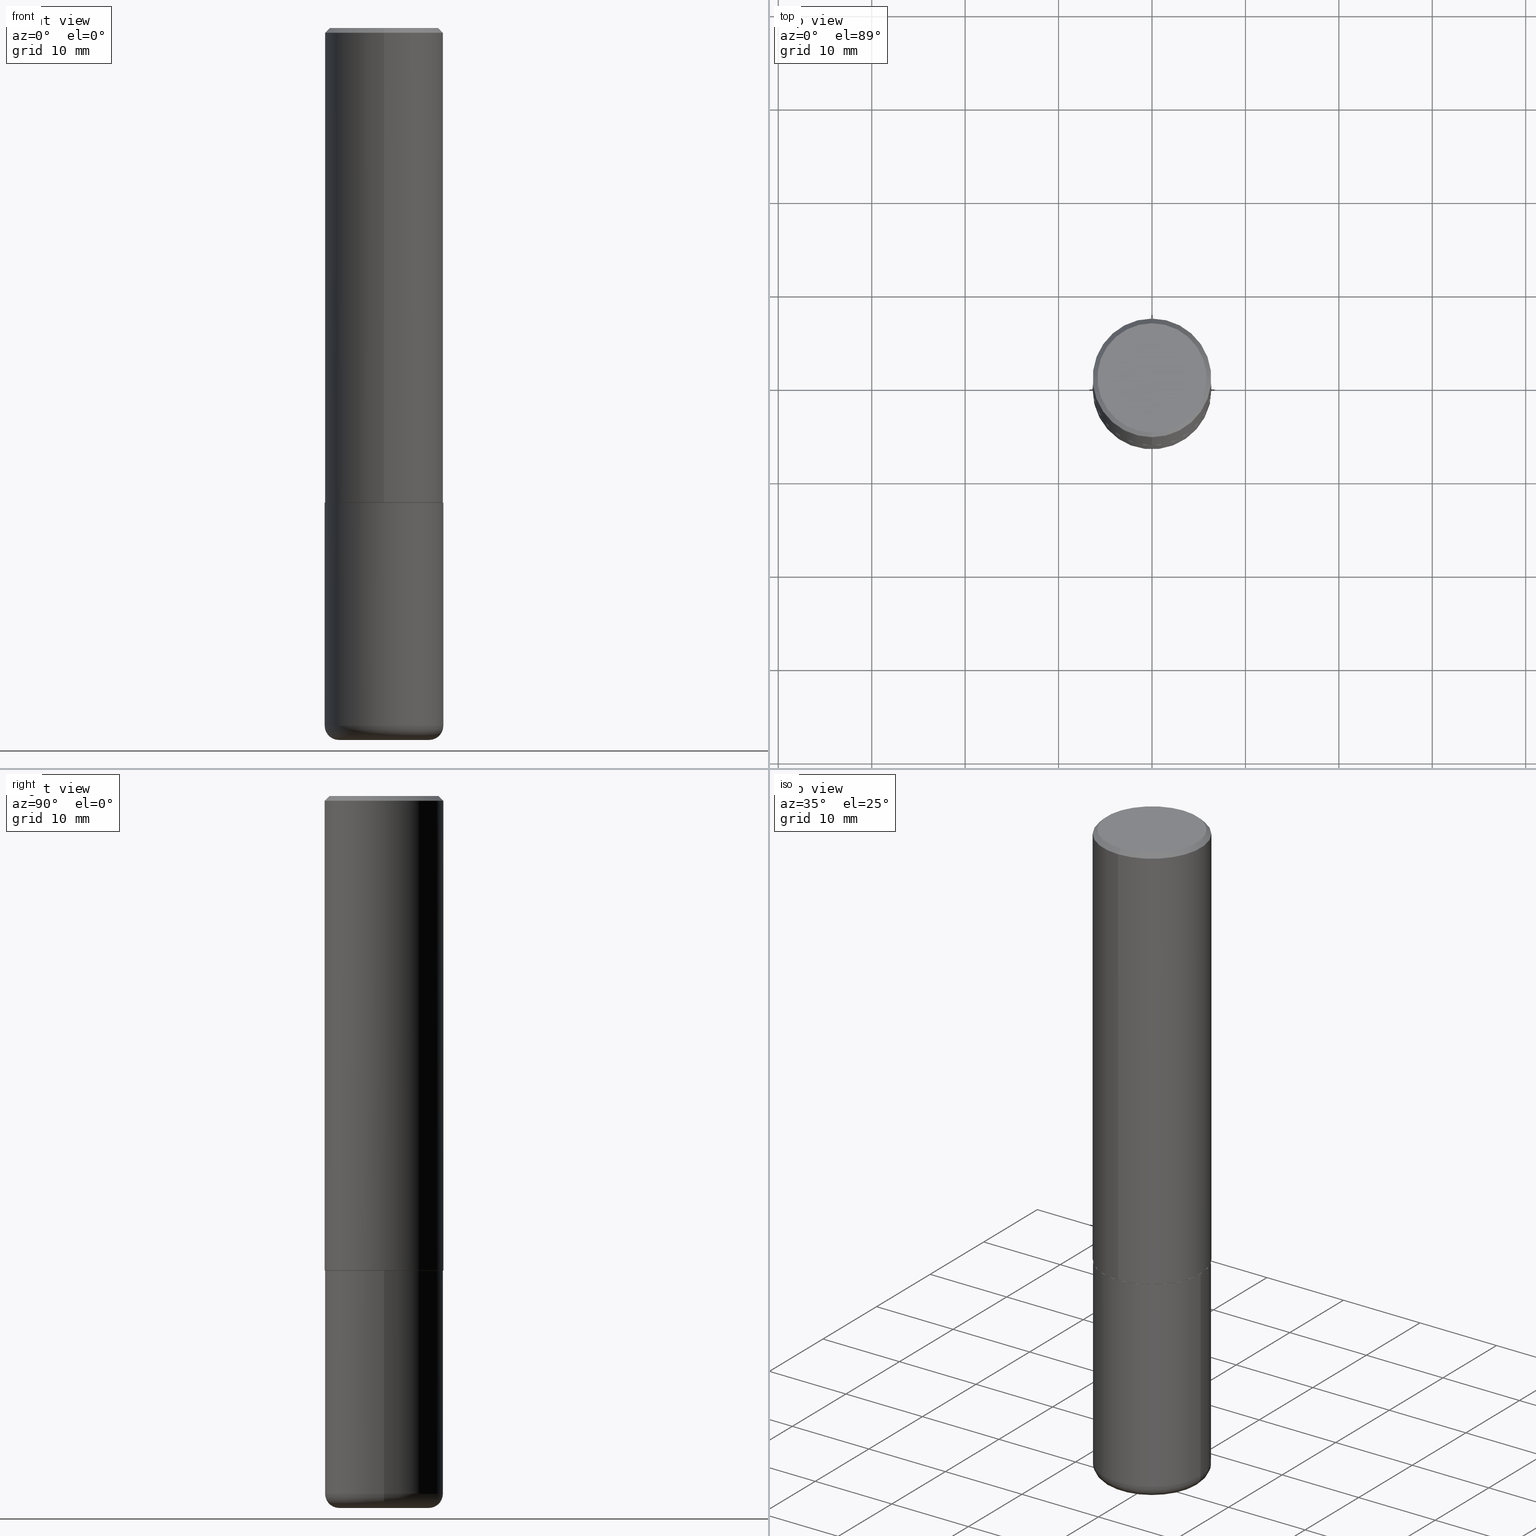
[diagram: canonical four-view strip — front | top / right | iso, engineering-drawing reading convention]
A machine part, canonical four-view strip (front | top / right | iso — engineering-drawing reading convention). The complete STEP part file that produces these views, byte-faithful:
ISO-10303-21;
HEADER;
FILE_DESCRIPTION (( 'STEP AP203' ),
    '1' );
FILE_NAME ('38378.STEP',
    '2024-03-03T01:48:02',
    ( '' ),
    ( '' ),
    'SwSTEP 2.0',
    'SolidWorks 2023',
    '' );
FILE_SCHEMA (( 'CONFIG_CONTROL_DESIGN' ));
ENDSEC;

DATA;
#1 = PLANE ( 'NONE',  #317 ) ;
#2 = ADVANCED_FACE ( 'NONE', ( #388 ), #319, .F. ) ;
#3 = CARTESIAN_POINT ( 'NONE',  ( -1.646519519465166573E-15, -0.2299999999999997879, 9.532569058576452351E-16 ) ) ;
#4 = AXIS2_PLACEMENT_3D ( 'NONE', #65, #379, #7 ) ;
#5 = EDGE_LOOP ( 'NONE', ( #51, #56, #334, #87 ) ) ;
#6 = EDGE_CURVE ( 'NONE', #146, #144, #252, .T. ) ;
#7 = DIRECTION ( 'NONE',  ( 6.982962677686265922E-15, 1.000000000000000000, -3.500180241882337261E-15 ) ) ;
#8 = CONICAL_SURFACE ( 'NONE', #396, 0.2500000000000000000, 0.7853981633974480570 ) ;
#9 = APPLICATION_PROTOCOL_DEFINITION ( 'international standard', 'config_control_design', 1994, #349 ) ;
#10 = ADVANCED_FACE ( 'NONE', ( #150 ), #123, .T. ) ;
#11 = CLOSED_SHELL ( 'NONE', ( #130, #258, #377, #385, #10, #362, #360, #2 ) ) ;
#12 = EDGE_CURVE ( 'NONE', #315, #361, #67, .T. ) ;
#13 = DIRECTION ( 'NONE',  ( -2.444226657398402323E-29, 3.493260166604467606E-15, 1.000000000000000000 ) ) ;
#14 = MANIFOLD_SOLID_BREP ( 'Body-Move/Copy2[2]', #11 ) ;
#15 = ORIENTED_EDGE ( 'NONE', *, *, #340, .F. ) ;
#16 = DIRECTION ( 'NONE',  ( -2.444226657398402323E-29, 3.493260166604467606E-15, 1.000000000000000000 ) ) ;
#17 = EDGE_LOOP ( 'NONE', ( #332, #81, #48, #117 ) ) ;
#18 = AXIS2_PLACEMENT_3D ( 'NONE', #152, #219, #64 ) ;
#19 = CARTESIAN_POINT ( 'NONE',  ( -0.1899999999999999745, -8.806505557691924342E-15, -2.999999999999999556 ) ) ;
#20 = PERSON_AND_ORGANIZATION ( #119, #45 ) ;
#21 = ORIENTED_EDGE ( 'NONE', *, *, #292, .T. ) ;
#22 = DIRECTION ( 'NONE',  ( -2.444226657398402323E-29, 3.493260166604467606E-15, 1.000000000000000000 ) ) ;
#23 = PERSON_AND_ORGANIZATION_ROLE ( 'creator' ) ;
#24 = ORIENTED_EDGE ( 'NONE', *, *, #211, .T. ) ;
#25 = CYLINDRICAL_SURFACE ( 'NONE', #404, 0.2500000000000001110 ) ;
#26 = ORIENTED_EDGE ( 'NONE', *, *, #418, .T. ) ;
#27 = EDGE_CURVE ( 'NONE', #144, #204, #44, .T. ) ;
#28 = AXIS2_PLACEMENT_3D ( 'NONE', #310, #406, #43 ) ;
#29 = PRODUCT ( '38378', '38378', '', ( #392 ) ) ;
#30 = APPROVAL_STATUS ( 'not_yet_approved' ) ;
#31 = CARTESIAN_POINT ( 'NONE',  ( 0.2500000000000000000, -1.745740669421566678E-15, 1.219044193948983948E-29 ) ) ;
#32 = CARTESIAN_POINT ( 'NONE',  ( 1.776356839400276103E-15, 0.2499999999999933109, -1.999000000000000998 ) ) ;
#33 = CALENDAR_DATE ( 2024, 2, 3 ) ;
#34 = DIRECTION ( 'NONE',  ( -2.445468806185136597E-29, 3.491481338843145583E-15, 1.000000000000000000 ) ) ;
#35 = CYLINDRICAL_SURFACE ( 'NONE', #128, 0.2500000000000000000 ) ;
#36 = DIRECTION ( 'NONE',  ( 7.105427357601001859E-15, 1.000000000000000000, -3.491481338843145583E-15 ) ) ;
#37 = EDGE_CURVE ( 'NONE', #132, #204, #188, .T. ) ;
#38 = AXIS2_PLACEMENT_3D ( 'NONE', #239, #116, #78 ) ;
#39 = CONICAL_SURFACE ( 'NONE', #4, 0.2500000000000000000, 0.7853981633974480570 ) ;
#40 = CARTESIAN_POINT ( 'NONE',  ( 1.769251412042697971E-15, 0.2489999999999930047, -2.000000000000001332 ) ) ;
#41 = CC_DESIGN_DATE_AND_TIME_ASSIGNMENT ( #318, #243, ( #177 ) ) ;
#42 = PERSON_AND_ORGANIZATION_ROLE ( 'design_owner' ) ;
#43 = DIRECTION ( 'NONE',  ( 1.000000000000000000, -6.982962677686262766E-15, 0.000000000000000000 ) ) ;
#44 = CIRCLE ( 'NONE', #254, 0.2500000000000000000 ) ;
#45 = ORGANIZATION ( 'UNSPECIFIED', 'UNSPECIFIED', '' ) ;
#46 = CARTESIAN_POINT ( 'NONE',  ( 1.776356839400251254E-15, 0.2500000000000001110, -8.733150416511173944E-16 ) ) ;
#47 = ORIENTED_EDGE ( 'NONE', *, *, #269, .F. ) ;
#48 = ORIENTED_EDGE ( 'NONE', *, *, #86, .T. ) ;
#49 = DIRECTION ( 'NONE',  ( -6.982962677686265922E-15, -1.000000000000000000, 3.278217592397112312E-15 ) ) ;
#50 = PERSON_AND_ORGANIZATION ( #119, #45 ) ;
#51 = ORIENTED_EDGE ( 'NONE', *, *, #37, .F. ) ;
#52 = LINE ( 'NONE', #46, #296 ) ;
#53 = ORIENTED_EDGE ( 'NONE', *, *, #131, .T. ) ;
#54 = DIRECTION ( 'NONE',  ( -2.444226657398402323E-29, 3.493260166604467606E-15, 1.000000000000000000 ) ) ;
#55 = EDGE_CURVE ( 'NONE', #90, #114, #242, .T. ) ;
#56 = ORIENTED_EDGE ( 'NONE', *, *, #73, .T. ) ;
#57 = DIRECTION ( 'NONE',  ( -1.000000000000000000, 6.982962677686265922E-15, -4.876176775795935793E-29 ) ) ;
#58 = COORDINATED_UNIVERSAL_TIME_OFFSET ( 5, 0, .BEHIND. ) ;
#59 = ORIENTED_EDGE ( 'NONE', *, *, #211, .F. ) ;
#60 = FACE_OUTER_BOUND ( 'NONE', #407, .T. ) ;
#61 = TOROIDAL_SURFACE ( 'NONE', #339, 0.1899999999999999745, 0.05999999999999968553 ) ;
#62 = DIRECTION ( 'NONE',  ( 1.000000000000000000, -6.982962677686266711E-15, 0.000000000000000000 ) ) ;
#63 = CARTESIAN_POINT ( 'NONE',  ( -0.1899999999999999745, -8.914923938254659640E-15, -2.940000000000000391 ) ) ;
#64 = DIRECTION ( 'NONE',  ( 6.982962677686265922E-15, 1.000000000000000000, -3.493260166604467606E-15 ) ) ;
#65 = CARTESIAN_POINT ( 'NONE',  ( 4.888453314796818974E-31, -6.986520333208953651E-17, -0.02000000000000005593 ) ) ;
#66 = PERSON_AND_ORGANIZATION_ROLE ( 'design_supplier' ) ;
#67 = LINE ( 'NONE', #327, #168 ) ;
#68 = CIRCLE ( 'NONE', #325, 0.2500000000000000000 ) ;
#69 =( GEOMETRIC_REPRESENTATION_CONTEXT ( 3 ) GLOBAL_UNCERTAINTY_ASSIGNED_CONTEXT ( ( #229 ) ) GLOBAL_UNIT_ASSIGNED_CONTEXT ( ( #97, #195, #162 ) ) REPRESENTATION_CONTEXT ( 'NONE', 'WORKASPACE' ) );
#70 = DIRECTION ( 'NONE',  ( -1.000000000000000000, 7.105427357600997914E-15, 0.000000000000000000 ) ) ;
#71 = EDGE_CURVE ( 'NONE', #337, #236, #257, .T. ) ;
#72 = APPROVAL_PERSON_ORGANIZATION ( #20, #205, #143 ) ;
#73 = EDGE_CURVE ( 'NONE', #132, #146, #163, .T. ) ;
#74 = DIRECTION ( 'NONE',  ( 1.000000000000000000, -6.982962677686275388E-15, 0.000000000000000000 ) ) ;
#75 = DIRECTION ( 'NONE',  ( 1.000000000000000000, 0.000000000000000000, 0.000000000000000000 ) ) ;
#76 = CARTESIAN_POINT ( 'NONE',  ( 4.888453314796805767E-29, -6.986520333208936789E-15, -2.000000000000000444 ) ) ;
#77 = CIRCLE ( 'NONE', #348, 0.2500000000000002776 ) ;
#78 = DIRECTION ( 'NONE',  ( -1.000000000000000000, 6.982962677686265922E-15, -4.876176775795935793E-29 ) ) ;
#79 = EDGE_LOOP ( 'NONE', ( #414, #53, #395, #280 ) ) ;
#80 = CARTESIAN_POINT ( 'NONE',  ( -1.738757706743831360E-15, -0.2490000000000069935, -1.999999999999999778 ) ) ;
#81 = ORIENTED_EDGE ( 'NONE', *, *, #269, .T. ) ;
#82 = FACE_OUTER_BOUND ( 'NONE', #17, .T. ) ;
#83 = CALENDAR_DATE ( 2024, 2, 3 ) ;
#84 = ORIENTED_EDGE ( 'NONE', *, *, #198, .F. ) ;
#85 = DIRECTION ( 'NONE',  ( 4.937700262164546464E-15, 0.7071067811865449082, -0.7071067811865501263 ) ) ;
#86 = EDGE_CURVE ( 'NONE', #90, #146, #403, .T. ) ;
#87 = ORIENTED_EDGE ( 'NONE', *, *, #103, .F. ) ;
#88 = CARTESIAN_POINT ( 'NONE',  ( 4.890937612370273754E-29, -6.982962677686291954E-15, -2.000000000000000444 ) ) ;
#89 = DIMENSIONAL_EXPONENTS ( 1.000000000000000000, 0.000000000000000000, 0.000000000000000000, 0.000000000000000000, 0.000000000000000000, 0.000000000000000000, 0.000000000000000000 ) ;
#90 = VERTEX_POINT ( 'NONE', #166 ) ;
#91 = CARTESIAN_POINT ( 'NONE',  ( -1.745740669421567467E-15, -0.2500000000000001110, 8.733150416511173944E-16 ) ) ;
#92 = DIRECTION ( 'NONE',  ( -4.851104656540962697E-15, -0.7071067811865497932, -0.7071067811865452413 ) ) ;
#93 = CONICAL_SURFACE ( 'NONE', #215, 0.2489999999999999991, 0.7853981633974141952 ) ;
#94 = CYLINDRICAL_SURFACE ( 'NONE', #295, 0.2500000000000000000 ) ;
#95 = LINE ( 'NONE', #91, #279 ) ;
#96 = VERTEX_POINT ( 'NONE', #173 ) ;
#97 =( CONVERSION_BASED_UNIT ( 'INCH', #222 ) LENGTH_UNIT ( ) NAMED_UNIT ( #89 ) );
#98 = ADVANCED_FACE ( 'NONE', ( #110 ), #263, .T. ) ;
#99 = CARTESIAN_POINT ( 'NONE',  ( 7.189678290184301639E-29, -1.026495513619884961E-14, -2.940000000000000391 ) ) ;
#100 = DIRECTION ( 'NONE',  ( -2.445468806185136597E-29, 3.491481338843145583E-15, 1.000000000000000000 ) ) ;
#101 = VECTOR ( 'NONE', #322, 39.37007874015748143 ) ;
#102 = AXIS2_PLACEMENT_3D ( 'NONE', #417, #147, #153 ) ;
#103 = EDGE_CURVE ( 'NONE', #204, #144, #68, .T. ) ;
#104 = DIRECTION ( 'NONE',  ( -2.444226657398402323E-29, 3.493260166604467606E-15, 1.000000000000000000 ) ) ;
#105 = ADVANCED_FACE ( 'NONE', ( #82 ), #266, .T. ) ;
#106 = EDGE_CURVE ( 'NONE', #236, #96, #52, .T. ) ;
#107 = CALENDAR_DATE ( 2024, 2, 3 ) ;
#108 = ORIENTED_EDGE ( 'NONE', *, *, #311, .T. ) ;
#109 = AXIS2_PLACEMENT_3D ( 'NONE', #63, #36, #70 ) ;
#110 = FACE_OUTER_BOUND ( 'NONE', #299, .T. ) ;
#111 = VERTEX_POINT ( 'NONE', #267 ) ;
#112 = DIRECTION ( 'NONE',  ( -4.937700262164378437E-15, -0.7071067811865208164, 0.7071067811865739960 ) ) ;
#113 = CALENDAR_DATE ( 2024, 2, 3 ) ;
#114 = VERTEX_POINT ( 'NONE', #19 ) ;
#115 = CC_DESIGN_PERSON_AND_ORGANIZATION_ASSIGNMENT ( #160, #125, ( #177 ) ) ;
#116 = DIRECTION ( 'NONE',  ( 2.438088387897960049E-29, -3.491481338843145188E-15, -1.000000000000000000 ) ) ;
#117 = ORIENTED_EDGE ( 'NONE', *, *, #73, .F. ) ;
#118 = CIRCLE ( 'NONE', #234, 0.2489999999999999991 ) ;
#119 = PERSON ( 'UNSPECIFIED', 'UNSPECIFIED', 'UNSPECIFIED', ('UNSPECIFIED'), ('UNSPECIFIED'), ('UNSPECIFIED') ) ;
#120 = FACE_OUTER_BOUND ( 'NONE', #209, .T. ) ;
#121 = EDGE_LOOP ( 'NONE', ( #386, #265, #273, #156 ) ) ;
#122 = DIRECTION ( 'NONE',  ( 1.000000000000000000, -6.982962677686266711E-15, 4.876176775795935793E-29 ) ) ;
#123 = CYLINDRICAL_SURFACE ( 'NONE', #223, 0.2500000000000001110 ) ;
#124 = CARTESIAN_POINT ( 'NONE',  ( 0.000000000000000000, 0.000000000000000000, 0.000000000000000000 ) ) ;
#125 = PERSON_AND_ORGANIZATION_ROLE ( 'classification_officer' ) ;
#126 = ADVANCED_BREP_SHAPE_REPRESENTATION ( '38378', ( #154, #14, #250 ), #69 ) ;
#127 = VECTOR ( 'NONE', #112, 39.37007874015748854 ) ;
#128 = AXIS2_PLACEMENT_3D ( 'NONE', #387, #251, #159 ) ;
#129 = PLANE ( 'NONE',  #268 ) ;
#130 = ADVANCED_FACE ( 'NONE', ( #408 ), #139, .T. ) ;
#131 = EDGE_CURVE ( 'NONE', #236, #111, #194, .T. ) ;
#132 = VERTEX_POINT ( 'NONE', #241 ) ;
#133 = CARTESIAN_POINT ( 'NONE',  ( 7.336406418555408669E-29, -1.047444401652943478E-14, -2.999999999999999556 ) ) ;
#134 = DIRECTION ( 'NONE',  ( 1.000000000000000000, -6.982962677686262766E-15, 0.000000000000000000 ) ) ;
#135 = LOCAL_TIME ( 20, 48, 2.000000000000000000, #302 ) ;
#136 = DIRECTION ( 'NONE',  ( -6.982962677686265922E-15, -1.000000000000000000, 3.500180241882337261E-15 ) ) ;
#137 = EDGE_CURVE ( 'NONE', #375, #111, #167, .T. ) ;
#138 = DIRECTION ( 'NONE',  ( -6.982962677686265133E-15, -1.000000000000000000, 3.291383124896702687E-15 ) ) ;
#139 = CONICAL_SURFACE ( 'NONE', #380, 0.2489999999999999991, 0.7853981633974141952 ) ;
#140 = CC_DESIGN_APPROVAL ( #285, ( #245 ) ) ;
#141 = EDGE_LOOP ( 'NONE', ( #367, #270 ) ) ;
#142 = EDGE_CURVE ( 'NONE', #361, #96, #176, .T. ) ;
#143 = APPROVAL_ROLE ( '' ) ;
#144 = VERTEX_POINT ( 'NONE', #237 ) ;
#145 = LINE ( 'NONE', #412, #381 ) ;
#146 = VERTEX_POINT ( 'NONE', #232 ) ;
#147 = DIRECTION ( 'NONE',  ( -2.445468806185136597E-29, 3.491481338843145583E-15, 1.000000000000000000 ) ) ;
#148 = ORIENTED_EDGE ( 'NONE', *, *, #12, .T. ) ;
#149 = CARTESIAN_POINT ( 'NONE',  ( 0.000000000000000000, 0.000000000000000000, 0.000000000000000000 ) ) ;
#150 = FACE_OUTER_BOUND ( 'NONE', #79, .T. ) ;
#151 = PERSON_AND_ORGANIZATION ( #119, #45 ) ;
#152 = CARTESIAN_POINT ( 'NONE',  ( 1.606081415867839884E-15, 0.2299999999999997879, -7.285463045497175546E-16 ) ) ;
#153 = DIRECTION ( 'NONE',  ( 1.000000000000000000, -6.982962677686273021E-15, 0.000000000000000000 ) ) ;
#154 = MANIFOLD_SOLID_BREP ( 'Body-Move/Copy2[1]', #157 ) ;
#155 = APPROVAL_ROLE ( '' ) ;
#156 = ORIENTED_EDGE ( 'NONE', *, *, #6, .F. ) ;
#157 = CLOSED_SHELL ( 'NONE', ( #256, #399, #398, #260, #105, #98 ) ) ;
#158 = CIRCLE ( 'NONE', #102, 0.1899999999999999745 ) ;
#159 = DIRECTION ( 'NONE',  ( 1.000000000000000000, -6.982962677686266711E-15, 4.876176775795935793E-29 ) ) ;
#160 = PERSON_AND_ORGANIZATION ( #119, #45 ) ;
#161 = EDGE_CURVE ( 'NONE', #375, #337, #286, .T. ) ;
#162 =( NAMED_UNIT ( * ) SI_UNIT ( $, .STERADIAN. ) SOLID_ANGLE_UNIT ( ) );
#163 = CIRCLE ( 'NONE', #347, 0.2500000000000000000 ) ;
#164 = AXIS2_PLACEMENT_3D ( 'NONE', #76, #203, #138 ) ;
#165 = DIRECTION ( 'NONE',  ( -2.445468806185136597E-29, 3.491481338843145583E-15, 1.000000000000000000 ) ) ;
#166 = CARTESIAN_POINT ( 'NONE',  ( 0.1899999999999999745, -1.180120692528982640E-14, -2.999999999999999556 ) ) ;
#167 = LINE ( 'NONE', #80, #127 ) ;
#168 = VECTOR ( 'NONE', #92, 39.37007874015748143 ) ;
#169 = AXIS2_PLACEMENT_3D ( 'NONE', #247, #190, #253 ) ;
#170 = APPROVAL_STATUS ( 'not_yet_approved' ) ;
#171 = ORIENTED_EDGE ( 'NONE', *, *, #161, .T. ) ;
#172 = DESIGN_CONTEXT ( 'detailed design', #365, 'design' ) ;
#173 = CARTESIAN_POINT ( 'NONE',  ( 1.745740669421566875E-15, 0.2499999999999999167, -0.02000000000000093023 ) ) ;
#174 = ORIENTED_EDGE ( 'NONE', *, *, #212, .T. ) ;
#175 = CARTESIAN_POINT ( 'NONE',  ( 4.888453314796805767E-29, -6.986520333208936789E-15, -2.000000000000000444 ) ) ;
#176 = CIRCLE ( 'NONE', #226, 0.2500000000000000000 ) ;
#177 = SECURITY_CLASSIFICATION ( '', '', #345 ) ;
#178 = ORIENTED_EDGE ( 'NONE', *, *, #142, .T. ) ;
#179 = DIRECTION ( 'NONE',  ( 1.000000000000000000, -6.982962677686265133E-15, 4.883557194083112340E-29 ) ) ;
#180 = APPROVAL_DATE_TIME ( #368, #205 ) ;
#181 = DIRECTION ( 'NONE',  ( -2.444226657398402323E-29, 3.493260166604467606E-15, 1.000000000000000000 ) ) ;
#182 = SHAPE_DEFINITION_REPRESENTATION ( #307, #126 ) ;
#183 = ORIENTED_EDGE ( 'NONE', *, *, #217, .F. ) ;
#184 = FACE_OUTER_BOUND ( 'NONE', #341, .T. ) ;
#185 = ORIENTED_EDGE ( 'NONE', *, *, #12, .F. ) ;
#186 = CC_DESIGN_DATE_AND_TIME_ASSIGNMENT ( #235, #308, ( #245 ) ) ;
#187 = CARTESIAN_POINT ( 'NONE',  ( 4.888453314796805767E-29, -6.986520333208936789E-15, -2.000000000000000444 ) ) ;
#188 = LINE ( 'NONE', #291, #101 ) ;
#189 = CARTESIAN_POINT ( 'NONE',  ( 7.189678290184301639E-29, -1.026495513619884961E-14, -2.940000000000000391 ) ) ;
#190 = DIRECTION ( 'NONE',  ( -2.444226657398402323E-29, 3.493260166604467606E-15, 1.000000000000000000 ) ) ;
#191 = CC_DESIGN_PERSON_AND_ORGANIZATION_ASSIGNMENT ( #331, #42, ( #29 ) ) ;
#192 = AXIS2_PLACEMENT_3D ( 'NONE', #346, #277, #342 ) ;
#193 = DIRECTION ( 'NONE',  ( 0.000000000000000000, 0.000000000000000000, 1.000000000000000000 ) ) ;
#194 = CIRCLE ( 'NONE', #329, 0.2500000000000002776 ) ;
#195 =( NAMED_UNIT ( * ) PLANE_ANGLE_UNIT ( ) SI_UNIT ( $, .RADIAN. ) );
#196 = PRODUCT_DEFINITION_FORMATION_WITH_SPECIFIED_SOURCE ( 'ANY', '', #29, .NOT_KNOWN. ) ;
#197 = ORIENTED_EDGE ( 'NONE', *, *, #231, .T. ) ;
#198 = EDGE_CURVE ( 'NONE', #146, #132, #255, .T. ) ;
#199 = AXIS2_PLACEMENT_3D ( 'NONE', #376, #382, #284 ) ;
#200 = CARTESIAN_POINT ( 'NONE',  ( 4.886009088139406713E-29, -6.983027073042331152E-15, -1.999000000000000110 ) ) ;
#201 = APPROVAL_ROLE ( '' ) ;
#202 = VERTEX_POINT ( 'NONE', #366 ) ;
#203 = DIRECTION ( 'NONE',  ( -2.444226657398402323E-29, 3.493260166604467606E-15, 1.000000000000000000 ) ) ;
#204 = VERTEX_POINT ( 'NONE', #335 ) ;
#205 = APPROVAL ( #409, 'UNSPECIFIED' ) ;
#206 = CIRCLE ( 'NONE', #169, 0.2500000000000000000 ) ;
#207 = ORIENTED_EDGE ( 'NONE', *, *, #137, .F. ) ;
#208 = CARTESIAN_POINT ( 'NONE',  ( 4.886009088139406713E-29, -6.983027073042331152E-15, -1.999000000000000110 ) ) ;
#209 = EDGE_LOOP ( 'NONE', ( #185, #390, #174, #197 ) ) ;
#210 = DIRECTION ( 'NONE',  ( 2.438088387897960049E-29, -3.491481338843145188E-15, -1.000000000000000000 ) ) ;
#211 = EDGE_CURVE ( 'NONE', #337, #375, #118, .T. ) ;
#212 = EDGE_CURVE ( 'NONE', #202, #96, #145, .T. ) ;
#213 = ORIENTED_EDGE ( 'NONE', *, *, #55, .F. ) ;
#214 = CARTESIAN_POINT ( 'NONE',  ( 4.888453314796805767E-29, -6.986520333208936789E-15, -2.000000000000000444 ) ) ;
#215 = AXIS2_PLACEMENT_3D ( 'NONE', #187, #354, #316 ) ;
#216 = CIRCLE ( 'NONE', #199, 0.2299999999999997879 ) ;
#217 = EDGE_CURVE ( 'NONE', #111, #236, #77, .T. ) ;
#218 = CARTESIAN_POINT ( 'NONE',  ( 4.888453314796818974E-31, -6.986520333208953651E-17, -0.02000000000000005593 ) ) ;
#219 = DIRECTION ( 'NONE',  ( 2.444226657398401762E-29, -3.493260166604467606E-15, -1.000000000000000000 ) ) ;
#220 = DIRECTION ( 'NONE',  ( -2.444226657398401762E-29, 3.493260166604467606E-15, 1.000000000000000000 ) ) ;
#221 = DIRECTION ( 'NONE',  ( -2.445468806185136877E-29, 3.491481338843145188E-15, 1.000000000000000000 ) ) ;
#222 = LENGTH_MEASURE_WITH_UNIT ( LENGTH_MEASURE( 0.02539999999999999897 ), #389 );
#223 = AXIS2_PLACEMENT_3D ( 'NONE', #248, #355, #378 ) ;
#224 = CARTESIAN_POINT ( 'NONE',  ( 0.1899999999999999745, -1.159171804495923808E-14, -2.940000000000000391 ) ) ;
#225 = DIRECTION ( 'NONE',  ( 5.024295867787889629E-15, 0.7071067811865257013, 0.7071067811865691111 ) ) ;
#226 = AXIS2_PLACEMENT_3D ( 'NONE', #371, #16, #136 ) ;
#227 = LOCAL_TIME ( 20, 48, 2.000000000000000000, #58 ) ;
#228 = DIRECTION ( 'NONE',  ( -6.982962677686266711E-15, -1.000000000000000000, 3.491481338843145583E-15 ) ) ;
#229 = UNCERTAINTY_MEASURE_WITH_UNIT (LENGTH_MEASURE( 1.000000000000000082E-05 ), #97, 'distance_accuracy_value', 'NONE');
#230 = PRODUCT_RELATED_PRODUCT_CATEGORY ( 'detail', '', ( #29 ) ) ;
#231 = EDGE_CURVE ( 'NONE', #96, #361, #206, .T. ) ;
#232 = CARTESIAN_POINT ( 'NONE',  ( 0.2499999999999998335, -1.201069580562041471E-14, -2.940000000000000391 ) ) ;
#233 = DIRECTION ( 'NONE',  ( -6.982962677686265133E-15, -1.000000000000000000, 3.291383124896702687E-15 ) ) ;
#234 = AXIS2_PLACEMENT_3D ( 'NONE', #175, #22, #305 ) ;
#235 = DATE_AND_TIME ( #107, #135 ) ;
#236 = VERTEX_POINT ( 'NONE', #32 ) ;
#237 = CARTESIAN_POINT ( 'NONE',  ( 0.2500000000000000000, -8.728703347107858632E-15, -2.000000000000000444 ) ) ;
#238 = ORIENTED_EDGE ( 'NONE', *, *, #106, .T. ) ;
#239 = CARTESIAN_POINT ( 'NONE',  ( 1.336053039146161825E-28, -1.847555615484388985E-15, -2.999999999999999556 ) ) ;
#240 = EDGE_LOOP ( 'NONE', ( #21, #108 ) ) ;
#241 = CARTESIAN_POINT ( 'NONE',  ( -0.2499999999999998335, -8.488598296798600727E-15, -2.940000000000000391 ) ) ;
#242 = CIRCLE ( 'NONE', #304, 0.1899999999999999745 ) ;
#243 = DATE_TIME_ROLE ( 'classification_date' ) ;
#244 = DIRECTION ( 'NONE',  ( 2.444226657398402323E-29, -3.493260166604467606E-15, -1.000000000000000000 ) ) ;
#245 = PRODUCT_DEFINITION ( 'UNKNOWN', '', #196, #172 ) ;
#246 = EDGE_LOOP ( 'NONE', ( #373, #148, #178, #364 ) ) ;
#247 = CARTESIAN_POINT ( 'NONE',  ( 4.888453314796818974E-31, -6.986520333208953651E-17, -0.02000000000000005593 ) ) ;
#248 = CARTESIAN_POINT ( 'NONE',  ( 0.000000000000000000, 0.000000000000000000, 0.000000000000000000 ) ) ;
#249 = DIRECTION ( 'NONE',  ( -6.982962677686265922E-15, -1.000000000000000000, 3.493260166604467606E-15 ) ) ;
#250 = AXIS2_PLACEMENT_3D ( 'NONE', #394, #193, #75 ) ;
#251 = DIRECTION ( 'NONE',  ( -2.445468806185136597E-29, 3.491481338843145583E-15, 1.000000000000000000 ) ) ;
#252 = LINE ( 'NONE', #31, #278 ) ;
#253 = DIRECTION ( 'NONE',  ( -6.982962677686265922E-15, -1.000000000000000000, 3.500180241882337261E-15 ) ) ;
#254 = AXIS2_PLACEMENT_3D ( 'NONE', #283, #350, #62 ) ;
#255 = CIRCLE ( 'NONE', #28, 0.2500000000000000000 ) ;
#256 = ADVANCED_FACE ( 'NONE', ( #281 ), #94, .T. ) ;
#257 = LINE ( 'NONE', #40, #294 ) ;
#258 = ADVANCED_FACE ( 'NONE', ( #323 ), #25, .T. ) ;
#259 = ORIENTED_EDGE ( 'NONE', *, *, #131, .F. ) ;
#260 = ADVANCED_FACE ( 'NONE', ( #324 ), #35, .T. ) ;
#261 = APPROVAL_PERSON_ORGANIZATION ( #151, #384, #155 ) ;
#262 = DIRECTION ( 'NONE',  ( -6.982962677686265922E-15, -1.000000000000000000, 3.278217592397112312E-15 ) ) ;
#263 = PLANE ( 'NONE',  #38 ) ;
#264 = DATE_AND_TIME ( #83, #391 ) ;
#265 = ORIENTED_EDGE ( 'NONE', *, *, #37, .T. ) ;
#266 = TOROIDAL_SURFACE ( 'NONE', #370, 0.1899999999999999745, 0.05999999999999968553 ) ;
#267 = CARTESIAN_POINT ( 'NONE',  ( -1.745740669421519543E-15, -0.2500000000000072164, -1.998999999999999444 ) ) ;
#268 = AXIS2_PLACEMENT_3D ( 'NONE', #88, #210, #57 ) ;
#269 = EDGE_CURVE ( 'NONE', #114, #90, #158, .T. ) ;
#270 = ORIENTED_EDGE ( 'NONE', *, *, #103, .T. ) ;
#271 = CARTESIAN_POINT ( 'NONE',  ( 7.189678290184301639E-29, -1.026495513619884961E-14, -2.940000000000000391 ) ) ;
#272 = COORDINATED_UNIVERSAL_TIME_OFFSET ( 5, 0, .BEHIND. ) ;
#273 = ORIENTED_EDGE ( 'NONE', *, *, #27, .F. ) ;
#274 = CARTESIAN_POINT ( 'NONE',  ( 4.890937612370273754E-29, -6.982962677686291954E-15, -2.000000000000000444 ) ) ;
#275 = COORDINATED_UNIVERSAL_TIME_OFFSET ( 5, 0, .BEHIND. ) ;
#276 = EDGE_LOOP ( 'NONE', ( #171, #288, #183, #207 ) ) ;
#277 = DIRECTION ( 'NONE',  ( -2.444226657398402323E-29, 3.493260166604467606E-15, 1.000000000000000000 ) ) ;
#278 = VECTOR ( 'NONE', #221, 39.37007874015748143 ) ;
#279 = VECTOR ( 'NONE', #181, 39.37007874015748143 ) ;
#280 = ORIENTED_EDGE ( 'NONE', *, *, #231, .F. ) ;
#281 = FACE_OUTER_BOUND ( 'NONE', #121, .T. ) ;
#282 = DIRECTION ( 'NONE',  ( -6.982962677686266711E-15, -1.000000000000000000, 3.493260166604468000E-15 ) ) ;
#283 = CARTESIAN_POINT ( 'NONE',  ( 4.890937612370273754E-29, -6.982962677686291954E-15, -2.000000000000000444 ) ) ;
#284 = DIRECTION ( 'NONE',  ( -6.982962677686266711E-15, -1.000000000000000000, 3.493260166604468394E-15 ) ) ;
#285 = APPROVAL ( #170, 'UNSPECIFIED' ) ;
#286 = CIRCLE ( 'NONE', #164, 0.2489999999999999991 ) ;
#287 = DATE_AND_TIME ( #353, #289 ) ;
#288 = ORIENTED_EDGE ( 'NONE', *, *, #71, .T. ) ;
#289 = LOCAL_TIME ( 20, 48, 2.000000000000000000, #326 ) ;
#290 = CARTESIAN_POINT ( 'NONE',  ( -1.715124499442882299E-15, -0.2500000000000000555, -0.01999999999999918163 ) ) ;
#291 = CARTESIAN_POINT ( 'NONE',  ( -0.2500000000000000000, 1.776356839400250465E-15, -1.229733772563726445E-29 ) ) ;
#292 = EDGE_CURVE ( 'NONE', #202, #315, #405, .T. ) ;
#293 = DIRECTION ( 'NONE',  ( -2.445468806185136597E-29, 3.491481338843145583E-15, 1.000000000000000000 ) ) ;
#294 = VECTOR ( 'NONE', #225, 39.37007874015748854 ) ;
#295 = AXIS2_PLACEMENT_3D ( 'NONE', #149, #34, #122 ) ;
#296 = VECTOR ( 'NONE', #333, 39.37007874015748143 ) ;
#297 = DIRECTION ( 'NONE',  ( -2.444226657398402323E-29, 3.493260166604467606E-15, 1.000000000000000000 ) ) ;
#298 = CARTESIAN_POINT ( 'NONE',  ( 4.888453314796805767E-29, -6.986520333208936789E-15, -2.000000000000000444 ) ) ;
#299 = EDGE_LOOP ( 'NONE', ( #213, #47 ) ) ;
#300 = CC_DESIGN_PERSON_AND_ORGANIZATION_ASSIGNMENT ( #50, #401, ( #245 ) ) ;
#301 = DIRECTION ( 'NONE',  ( -2.445468806185136597E-29, 3.491481338843145583E-15, 1.000000000000000000 ) ) ;
#302 = COORDINATED_UNIVERSAL_TIME_OFFSET ( 5, 0, .BEHIND. ) ;
#303 = ORIENTED_EDGE ( 'NONE', *, *, #86, .F. ) ;
#304 = AXIS2_PLACEMENT_3D ( 'NONE', #133, #165, #413 ) ;
#305 = DIRECTION ( 'NONE',  ( -6.982962677686265133E-15, -1.000000000000000000, 3.291383124896702687E-15 ) ) ;
#306 = LOCAL_TIME ( 20, 48, 2.000000000000000000, #272 ) ;
#307 = PRODUCT_DEFINITION_SHAPE ( 'NONE', 'NONE',  #245 ) ;
#308 = DATE_TIME_ROLE ( 'creation_date' ) ;
#309 = ORIENTED_EDGE ( 'NONE', *, *, #217, .T. ) ;
#310 = CARTESIAN_POINT ( 'NONE',  ( 7.189678290184301639E-29, -1.026495513619884961E-14, -2.940000000000000391 ) ) ;
#311 = EDGE_CURVE ( 'NONE', #315, #202, #216, .T. ) ;
#312 = PERSON_AND_ORGANIZATION ( #119, #45 ) ;
#313 = EDGE_LOOP ( 'NONE', ( #410, #24, #369, #259 ) ) ;
#314 = CARTESIAN_POINT ( 'NONE',  ( -1.738757706743831360E-15, -0.2490000000000069935, -1.999999999999999778 ) ) ;
#315 = VERTEX_POINT ( 'NONE', #3 ) ;
#316 = DIRECTION ( 'NONE',  ( -6.982962677686265133E-15, -1.000000000000000000, 3.291383124896702687E-15 ) ) ;
#317 = AXIS2_PLACEMENT_3D ( 'NONE', #214, #220, #249 ) ;
#318 = DATE_AND_TIME ( #33, #227 ) ;
#319 = PLANE ( 'NONE',  #18 ) ;
#320 = DIRECTION ( 'NONE',  ( 6.982962677686265922E-15, 1.000000000000000000, -3.500180241882337261E-15 ) ) ;
#321 = PERSON_AND_ORGANIZATION ( #119, #45 ) ;
#322 = DIRECTION ( 'NONE',  ( -2.445468806185136877E-29, 3.491481338843145188E-15, 1.000000000000000000 ) ) ;
#323 = FACE_OUTER_BOUND ( 'NONE', #402, .T. ) ;
#324 = FACE_OUTER_BOUND ( 'NONE', #5, .T. ) ;
#325 = AXIS2_PLACEMENT_3D ( 'NONE', #274, #301, #363 ) ;
#326 = COORDINATED_UNIVERSAL_TIME_OFFSET ( 5, 0, .BEHIND. ) ;
#327 = CARTESIAN_POINT ( 'NONE',  ( -1.715124499442882299E-15, -0.2500000000000000555, -0.01999999999999918163 ) ) ;
#328 = CC_DESIGN_APPROVAL ( #384, ( #177 ) ) ;
#329 = AXIS2_PLACEMENT_3D ( 'NONE', #200, #297, #49 ) ;
#330 = CIRCLE ( 'NONE', #109, 0.05999999999999966471 ) ;
#331 = PERSON_AND_ORGANIZATION ( #119, #45 ) ;
#332 = ORIENTED_EDGE ( 'NONE', *, *, #418, .F. ) ;
#333 = DIRECTION ( 'NONE',  ( -2.444226657398402323E-29, 3.493260166604467606E-15, 1.000000000000000000 ) ) ;
#334 = ORIENTED_EDGE ( 'NONE', *, *, #6, .T. ) ;
#335 = CARTESIAN_POINT ( 'NONE',  ( -0.2500000000000000000, -6.847602067542319531E-15, -2.000000000000000444 ) ) ;
#336 = APPROVAL_DATE_TIME ( #264, #285 ) ;
#337 = VERTEX_POINT ( 'NONE', #415 ) ;
#338 = AXIS2_PLACEMENT_3D ( 'NONE', #224, #228, #74 ) ;
#339 = AXIS2_PLACEMENT_3D ( 'NONE', #189, #293, #393 ) ;
#340 = EDGE_CURVE ( 'NONE', #111, #361, #95, .T. ) ;
#341 = EDGE_LOOP ( 'NONE', ( #343, #26, #84, #303 ) ) ;
#342 = DIRECTION ( 'NONE',  ( -6.982962677686266711E-15, -1.000000000000000000, 3.493260166604468394E-15 ) ) ;
#343 = ORIENTED_EDGE ( 'NONE', *, *, #55, .T. ) ;
#344 = FACE_OUTER_BOUND ( 'NONE', #313, .T. ) ;
#345 = SECURITY_CLASSIFICATION_LEVEL ( 'unclassified' ) ;
#346 = CARTESIAN_POINT ( 'NONE',  ( -3.661624279445739427E-45, 5.233150617084808964E-31, 1.498070675386184126E-16 ) ) ;
#347 = AXIS2_PLACEMENT_3D ( 'NONE', #99, #100, #134 ) ;
#348 = AXIS2_PLACEMENT_3D ( 'NONE', #208, #13, #262 ) ;
#349 = APPLICATION_CONTEXT ( 'configuration controlled 3d designs of mechanical parts and assemblies' ) ;
#350 = DIRECTION ( 'NONE',  ( -2.445468806185136597E-29, 3.491481338843145583E-15, 1.000000000000000000 ) ) ;
#351 = CC_DESIGN_PERSON_AND_ORGANIZATION_ASSIGNMENT ( #312, #23, ( #196 ) ) ;
#352 = FACE_OUTER_BOUND ( 'NONE', #246, .T. ) ;
#353 = CALENDAR_DATE ( 2024, 2, 3 ) ;
#354 = DIRECTION ( 'NONE',  ( -2.444226657398402323E-29, 3.493260166604467606E-15, 1.000000000000000000 ) ) ;
#355 = DIRECTION ( 'NONE',  ( -2.444226657398402323E-29, 3.493260166604467606E-15, 1.000000000000000000 ) ) ;
#356 = ORIENTED_EDGE ( 'NONE', *, *, #161, .F. ) ;
#357 = APPROVAL_PERSON_ORGANIZATION ( #358, #285, #201 ) ;
#358 = PERSON_AND_ORGANIZATION ( #119, #45 ) ;
#359 = CC_DESIGN_APPROVAL ( #205, ( #196 ) ) ;
#360 = ADVANCED_FACE ( 'NONE', ( #60 ), #1, .F. ) ;
#361 = VERTEX_POINT ( 'NONE', #290 ) ;
#362 = ADVANCED_FACE ( 'NONE', ( #344 ), #93, .T. ) ;
#363 = DIRECTION ( 'NONE',  ( 1.000000000000000000, -6.982962677686266711E-15, 0.000000000000000000 ) ) ;
#364 = ORIENTED_EDGE ( 'NONE', *, *, #212, .F. ) ;
#365 = APPLICATION_CONTEXT ( 'configuration controlled 3d designs of mechanical parts and assemblies' ) ;
#366 = CARTESIAN_POINT ( 'NONE',  ( 1.675911042644703379E-15, 0.2299999999999997879, -6.536427707804085579E-16 ) ) ;
#367 = ORIENTED_EDGE ( 'NONE', *, *, #27, .T. ) ;
#368 = DATE_AND_TIME ( #113, #306 ) ;
#369 = ORIENTED_EDGE ( 'NONE', *, *, #137, .T. ) ;
#370 = AXIS2_PLACEMENT_3D ( 'NONE', #271, #400, #179 ) ;
#371 = CARTESIAN_POINT ( 'NONE',  ( 4.888453314796818974E-31, -6.986520333208953651E-17, -0.02000000000000005593 ) ) ;
#372 = CC_DESIGN_SECURITY_CLASSIFICATION ( #177, ( #196 ) ) ;
#373 = ORIENTED_EDGE ( 'NONE', *, *, #311, .F. ) ;
#374 = FACE_OUTER_BOUND ( 'NONE', #141, .T. ) ;
#375 = VERTEX_POINT ( 'NONE', #314 ) ;
#376 = CARTESIAN_POINT ( 'NONE',  ( -3.661624279445739427E-45, 5.233150617084808964E-31, 1.498070675386184126E-16 ) ) ;
#377 = ADVANCED_FACE ( 'NONE', ( #352 ), #39, .T. ) ;
#378 = DIRECTION ( 'NONE',  ( -6.982962677686266711E-15, -1.000000000000000000, 3.493260166604468000E-15 ) ) ;
#379 = DIRECTION ( 'NONE',  ( 2.444226657398402323E-29, -3.493260166604467606E-15, -1.000000000000000000 ) ) ;
#380 = AXIS2_PLACEMENT_3D ( 'NONE', #298, #104, #233 ) ;
#381 = VECTOR ( 'NONE', #85, 39.37007874015748143 ) ;
#382 = DIRECTION ( 'NONE',  ( -2.444226657398402323E-29, 3.493260166604467606E-15, 1.000000000000000000 ) ) ;
#383 = APPROVAL_DATE_TIME ( #287, #384 ) ;
#384 = APPROVAL ( #30, 'UNSPECIFIED' ) ;
#385 = ADVANCED_FACE ( 'NONE', ( #120 ), #8, .T. ) ;
#386 = ORIENTED_EDGE ( 'NONE', *, *, #198, .T. ) ;
#387 = CARTESIAN_POINT ( 'NONE',  ( 0.000000000000000000, 0.000000000000000000, 0.000000000000000000 ) ) ;
#388 = FACE_OUTER_BOUND ( 'NONE', #240, .T. ) ;
#389 =( LENGTH_UNIT ( ) NAMED_UNIT ( * ) SI_UNIT ( $, .METRE. ) );
#390 = ORIENTED_EDGE ( 'NONE', *, *, #292, .F. ) ;
#391 = LOCAL_TIME ( 20, 48, 2.000000000000000000, #275 ) ;
#392 = MECHANICAL_CONTEXT ( 'NONE', #349, 'mechanical' ) ;
#393 = DIRECTION ( 'NONE',  ( 1.000000000000000000, -6.982962677686265133E-15, 4.883557194083112340E-29 ) ) ;
#394 = CARTESIAN_POINT ( 'NONE',  ( 0.000000000000000000, 0.000000000000000000, 0.000000000000000000 ) ) ;
#395 = ORIENTED_EDGE ( 'NONE', *, *, #340, .T. ) ;
#396 = AXIS2_PLACEMENT_3D ( 'NONE', #218, #244, #320 ) ;
#397 = APPLICATION_PROTOCOL_DEFINITION ( 'international standard', 'config_control_design', 1994, #365 ) ;
#398 = ADVANCED_FACE ( 'NONE', ( #374 ), #129, .F. ) ;
#399 = ADVANCED_FACE ( 'NONE', ( #184 ), #61, .T. ) ;
#400 = DIRECTION ( 'NONE',  ( -2.445468806185136597E-29, 3.491481338843145583E-15, 1.000000000000000000 ) ) ;
#401 = PERSON_AND_ORGANIZATION_ROLE ( 'creator' ) ;
#402 = EDGE_LOOP ( 'NONE', ( #309, #238, #416, #15 ) ) ;
#403 = CIRCLE ( 'NONE', #338, 0.05999999999999966471 ) ;
#404 = AXIS2_PLACEMENT_3D ( 'NONE', #124, #54, #282 ) ;
#405 = CIRCLE ( 'NONE', #192, 0.2299999999999997879 ) ;
#406 = DIRECTION ( 'NONE',  ( -2.445468806185136597E-29, 3.491481338843145583E-15, 1.000000000000000000 ) ) ;
#407 = EDGE_LOOP ( 'NONE', ( #356, #59 ) ) ;
#408 = FACE_OUTER_BOUND ( 'NONE', #276, .T. ) ;
#409 = APPROVAL_STATUS ( 'not_yet_approved' ) ;
#410 = ORIENTED_EDGE ( 'NONE', *, *, #71, .F. ) ;
#411 = CC_DESIGN_PERSON_AND_ORGANIZATION_ASSIGNMENT ( #321, #66, ( #196 ) ) ;
#412 = CARTESIAN_POINT ( 'NONE',  ( 1.745740669421566875E-15, 0.2499999999999999167, -0.02000000000000093023 ) ) ;
#413 = DIRECTION ( 'NONE',  ( 1.000000000000000000, -6.982962677686273021E-15, 0.000000000000000000 ) ) ;
#414 = ORIENTED_EDGE ( 'NONE', *, *, #106, .F. ) ;
#415 = CARTESIAN_POINT ( 'NONE',  ( 1.772804125721499659E-15, 0.2489999999999930325, -2.000000000000001332 ) ) ;
#416 = ORIENTED_EDGE ( 'NONE', *, *, #142, .F. ) ;
#417 = CARTESIAN_POINT ( 'NONE',  ( 7.336406418555408669E-29, -1.047444401652943478E-14, -2.999999999999999556 ) ) ;
#418 = EDGE_CURVE ( 'NONE', #114, #132, #330, .T. ) ;
ENDSEC;
END-ISO-10303-21;
